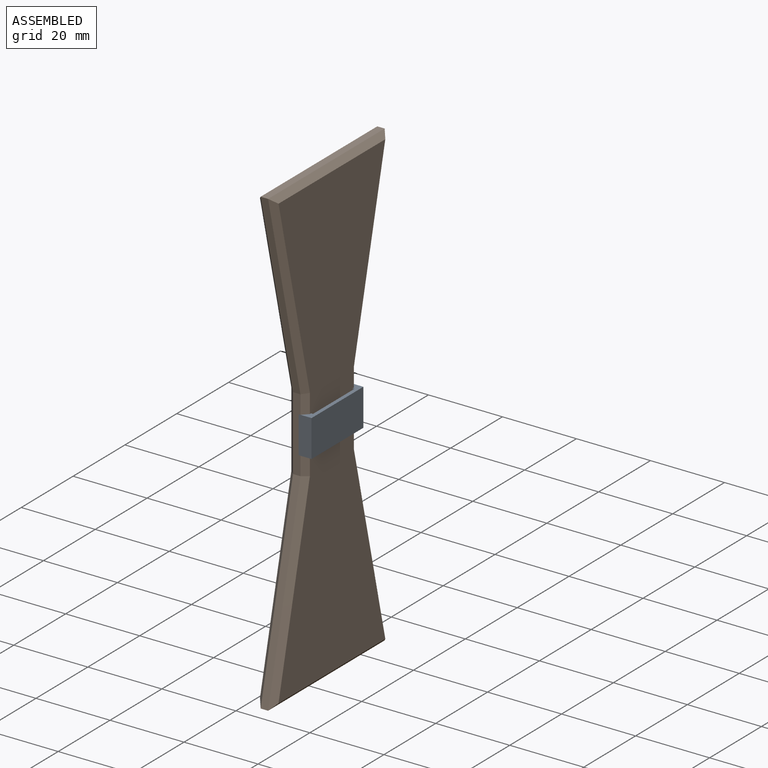
[diagram: assembled view]
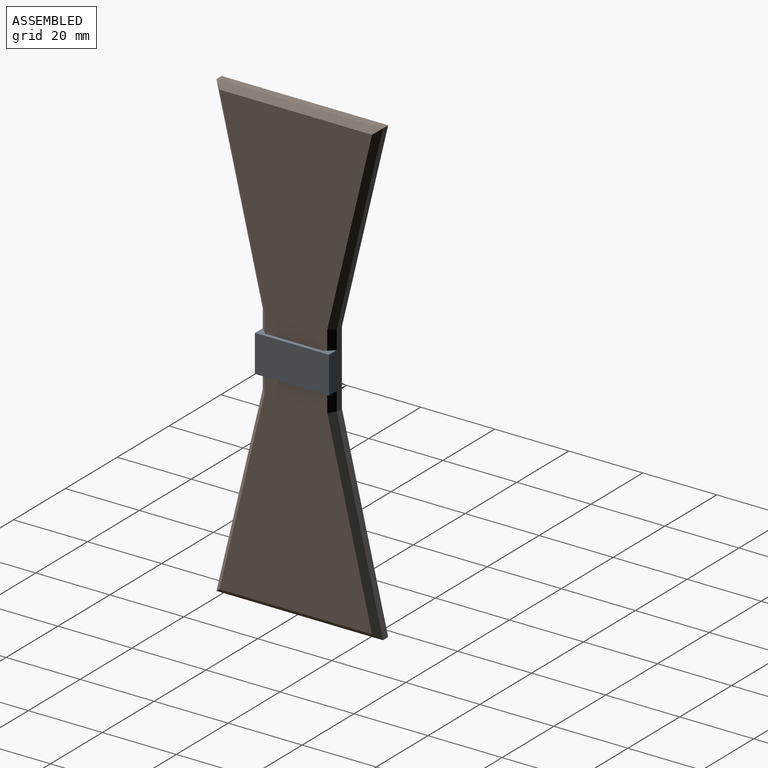
[diagram: assembled view, second angle]
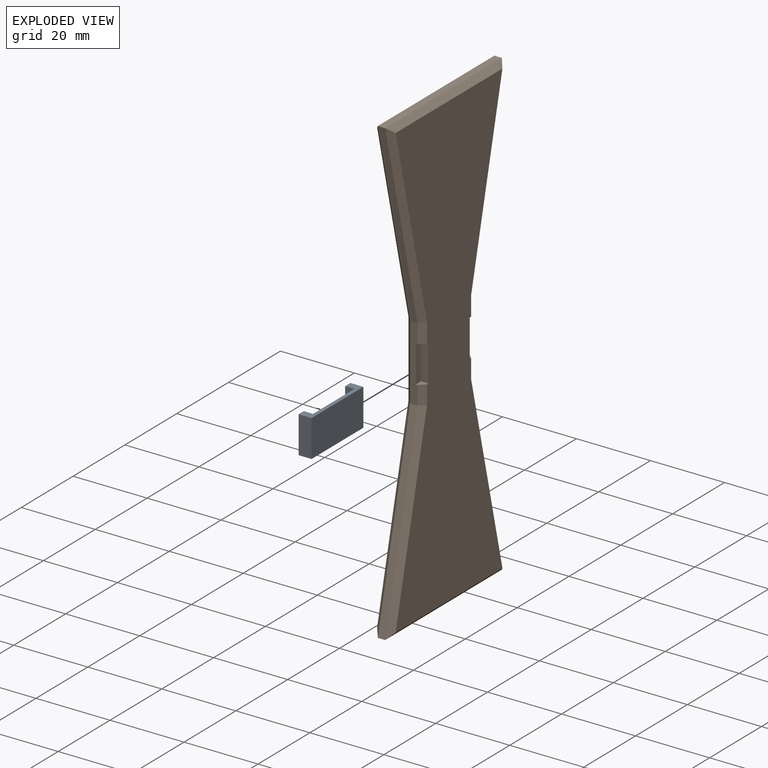
[diagram: exploded view]
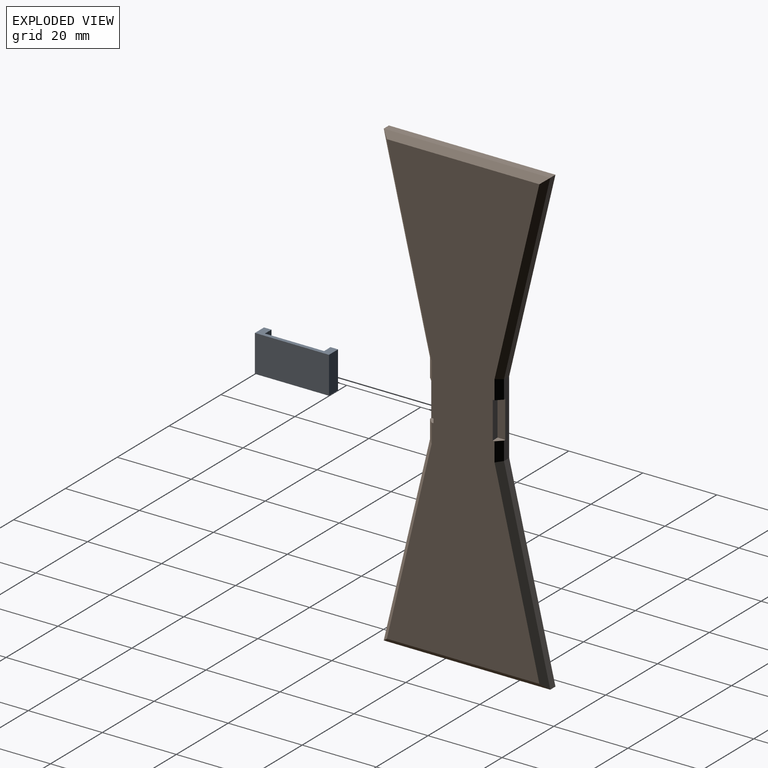
[diagram: exploded view, second angle]
ASSEMBLY  parts=2 mates=2
PART A: 12 faces, bbox 3.5x20x10 mm
  f0: plane 10x3.5mm, normal (0,-1,0), area 35mm2, adj f1,f9,f10,f11
  f1: plane 20x10mm, normal (1,0,0), area 200mm2, adj f0,f2,f10,f11
  f2: plane 10x3.5mm, normal (0,1,0), area 35mm2, adj f1,f3,f10,f11
  f3: plane 10x2.04mm, normal (-1,0,0), area 20.3mm2, adj f2,f4,f10,f11
  f4: plane 10x2mm, normal (0.02,-1,0), area 20mm2, adj f3,f5,f10,f11
  f5: plane 10x0.5mm, normal (0,-1,0), area 5mm2, adj f4,f6,f10,f11
  f6: plane 16x10mm, normal (-1,0,0), area 160mm2, adj f5,f7,f10,f11
  f7: plane 10x0.5mm, normal (0,1,0), area 5mm2, adj f6,f8,f10,f11
  f8: plane 10x2mm, normal (0.02,1,0), area 20mm2, adj f7,f9,f10,f11
  f9: plane 10x2.04mm, normal (-1,0,0), area 20.3mm2, adj f0,f8,f10,f11
  f10: plane 20x3.5mm, normal (0,0,1), area 30.1mm2, adj f0,f1,f2,f3,f4,f5,f6,f7
  f11: plane 20x3.5mm, normal (0,0,-1), area 30.1mm2, adj f0,f1,f2,f3,f4,f5,f6,f7
PART B: 70 faces, bbox 125x45x5 mm
  f0: plane 20x2mm, normal (0,-1,0), area 35mm2, adj f2,f7,f8,f49,f55,f66,f68,f69
  f1: plane 20x2mm, normal (0,1,0), area 35mm2, adj f3,f5,f10,f50,f60,f63,f64,f65
  f2: plane 5.18x1.5mm, normal (0,-0.71,-0.71), area 10.8mm2, adj f0,f11,f51,f66
  f3: plane 5.18x1.5mm, normal (0,0.71,-0.71), area 10.8mm2, adj f1,f11,f52,f63
  f4: plane 122x41.2mm, normal (0,0,1), area 3114mm2, adj f16,f17,f18,f19,f20,f21,f22,f23
  f5: plane 52.5x12.5mm, normal (0.23,0.97,0), area 107.9mm2, adj f1,f6,f52,f61
  f6: plane 45x2mm, normal (-1,0,0), area 90mm2, adj f5,f7,f53,f59
  f7: plane 52.5x12.5mm, normal (0.23,-0.97,0), area 107.9mm2, adj f0,f6,f51,f57
  f8: plane 52.5x12.5mm, normal (-0.23,-0.97,0), area 107.9mm2, adj f0,f9,f47,f54
  f9: plane 45x2mm, normal (1,0,0), area 90mm2, adj f8,f10,f46,f56
  f10: plane 52.5x12.5mm, normal (-0.23,0.97,0), area 107.9mm2, adj f1,f9,f48,f58
  f11: plane 122x41.2mm, normal (0,0,-1), area 3294mm2, adj f2,f3,f46,f47,f48,f49,f50,f51
  f12: plane 4.92x1.85mm, normal (0.94,0.35,0), area 5.3mm2, adj f13,f24,f25,f45
  f13: plane 5.13x1mm, normal (0,-1,0), area 5.1mm2, adj f12,f14,f25,f45
  f14: plane 4.92x1.86mm, normal (-0.94,0.35,0), area 5.3mm2, adj f13,f15,f25,f45
  f15: extruded ~2.29x1mm, area 2.4mm2, adj f14,f24,f25,f45
  f16: plane 5.05x1.98mm, normal (0.93,0.36,0), area 5.4mm2, adj f4,f17,f23,f25
  f17: plane 1.91x1mm, normal (0,1,0), area 1.9mm2, adj f4,f16,f18,f25
  f18: plane 15.93x6.24mm, normal (-0.93,-0.36,0), area 17.1mm2, adj f4,f17,f19,f25
  f19: plane 1.55x1mm, normal (0,-1,0), area 1.6mm2, adj f4,f18,f20,f25
  f20: plane 15.93x6.27mm, normal (0.93,-0.37,0), area 17.1mm2, adj f4,f19,f21,f25
  f21: plane 1.87x1mm, normal (0,1,0), area 1.9mm2, adj f4,f20,f22,f25
  f22: plane 5.05x1.95mm, normal (-0.93,0.36,0), area 5.4mm2, adj f4,f21,f23,f25
  f23: plane 6.36x1mm, normal (0,1,0), area 6.4mm2, adj f4,f16,f22,f25
  f24: extruded ~2.29x1mm, area 2.4mm2, adj f12,f15,f25,f45
  f25: plane 15.93x14.06mm, normal (0,0,1), area 64.8mm2, adj f12,f13,f14,f15,f16,f17,f18,f19
  f26: plane 14.06x5.38mm, normal (0.93,0.36,0), area 15.1mm2, adj f4,f27,f43,f44
  f27: plane 1.49x1mm, normal (0,1,0), area 1.5mm2, adj f4,f26,f28,f44
  f28: plane 14.04x5.43mm, normal (-0.93,0.36,0), area 15.1mm2, adj f4,f27,f29,f44
  f29: plane 1x0.09mm, normal (0,1,0), area 0.1mm2, adj f4,f28,f30,f44
  f30: extruded ~3.82x1mm, area 3.8mm2, adj f4,f29,f31,f44
  f31: plane 10.22x1mm, normal (1,0,0), area 10.2mm2, adj f4,f30,f32,f44
  f32: plane 1.84x1mm, normal (0,1,0), area 1.8mm2, adj f4,f31,f33,f44
  f33: plane 15.86x1mm, normal (-1,0,0), area 15.9mm2, adj f4,f32,f34,f44
  f34: plane 2.76x1mm, normal (0,-1,0), area 2.8mm2, adj f4,f33,f35,f44
  f35: plane 13.09x5.07mm, normal (0.93,-0.36,0), area 14mm2, adj f4,f34,f36,f44
  f36: plane 1x0.09mm, normal (0,-1,0), area 0.1mm2, adj f4,f35,f37,f44
  f37: plane 13.09x5.02mm, normal (-0.93,-0.36,0), area 14mm2, adj f4,f36,f38,f44
  f38: plane 2.78x1mm, normal (0,-1,0), area 2.8mm2, adj f4,f37,f39,f44
  f39: plane 15.86x1mm, normal (1,0,0), area 15.9mm2, adj f4,f38,f40,f44
  f40: plane 1.71x1mm, normal (0,1,0), area 1.7mm2, adj f4,f39,f41,f44
  f41: plane 10.09x1mm, normal (-1,0,0), area 10.1mm2, adj f4,f40,f42,f44
  f42: extruded ~3.97x1mm, area 4mm2, adj f4,f41,f43,f44
  f43: plane 1x0.09mm, normal (0,1,0), area 0.1mm2, adj f4,f26,f42,f44
  f44: plane 15.86x15.71mm, normal (0,0,1), area 107.6mm2, adj f26,f27,f28,f29,f30,f31,f32,f33
  f45: plane 7.21x5.13mm, normal (0,0,1), area 17.6mm2, adj f12,f13,f14,f15,f24
  f46: plane 45x1.5mm, normal (0.71,0,-0.71), area 91.4mm2, adj f9,f11,f47,f48
  f47: plane 52.5x14mm, normal (-0.16,-0.69,-0.71), area 112.7mm2, adj f8,f11,f46,f49
  f48: plane 52.5x14mm, normal (-0.16,0.69,-0.71), area 112.7mm2, adj f10,f11,f46,f50
  f49: plane 5.18x1.5mm, normal (0,-0.71,-0.71), area 10.8mm2, adj f0,f11,f47,f68
  f50: plane 5.18x1.5mm, normal (0,0.71,-0.71), area 10.8mm2, adj f1,f11,f48,f64
  f51: plane 52.5x14mm, normal (0.16,-0.69,-0.71), area 112.7mm2, adj f2,f7,f11,f53
  f52: plane 52.5x14mm, normal (0.16,0.69,-0.71), area 112.7mm2, adj f3,f5,f11,f53
  f53: plane 45x1.5mm, normal (-0.71,0,-0.71), area 91.4mm2, adj f6,f11,f51,f52
  f54: plane 52.5x14mm, normal (-0.16,-0.69,0.71), area 112.7mm2, adj f4,f8,f55,f56
  f55: plane 20.35x1.5mm, normal (0,-0.71,0.71), area 42.8mm2, adj f0,f4,f54,f57
  f56: plane 45x1.5mm, normal (0.71,0,0.71), area 91.4mm2, adj f4,f9,f54,f58
  f57: plane 52.5x14mm, normal (0.16,-0.69,0.71), area 112.7mm2, adj f4,f7,f55,f59
  f58: plane 52.5x14mm, normal (-0.16,0.69,0.71), area 112.7mm2, adj f4,f10,f56,f60
  f59: plane 45x1.5mm, normal (-0.71,0,0.71), area 91.4mm2, adj f4,f6,f57,f61
  f60: plane 20.35x1.5mm, normal (0,0.71,0.71), area 42.8mm2, adj f1,f4,f58,f61
  f61: plane 52.5x14mm, normal (0.16,0.69,0.71), area 112.7mm2, adj f4,f5,f59,f60
  f62: plane 10x2mm, normal (0,1,0.05), area 20mm2, adj f11,f63,f64,f65
  f63: plane 2.11x2mm, normal (1,0,0), area 3mm2, adj f1,f3,f11,f62,f65
  f64: plane 2.11x2mm, normal (-1,0,0), area 3mm2, adj f1,f11,f50,f62,f65
  f65: plane 10x2.11mm, normal (0,0,-1), area 21mm2, adj f1,f62,f63,f64
  f66: plane 2.11x2mm, normal (1,0,0), area 3mm2, adj f0,f2,f11,f67,f69
  f67: plane 10x2mm, normal (0,-1,0.05), area 20mm2, adj f11,f66,f68,f69
  f68: plane 2.11x2mm, normal (-1,0,0), area 3mm2, adj f0,f11,f49,f67,f69
  f69: plane 10x2.11mm, normal (0,0,-1), area 21mm2, adj f0,f66,f67,f68
PLACE A rot(axis=(-1,0,0),180deg) t=(7.77,3.13,-8.32)mm
PLACE B rot(axis=(-0.71,0,0.71),180deg) t=(9.77,3.13,-13.32)mm
MATE parallel A.f0 <-> B.f0  axis (0,1,0) through (9.52,13.13,-13.32)mm
MATE parallel A.f6 <-> B.f11  axis (-1,0,0) through (10.27,3.13,-8.32)mm
